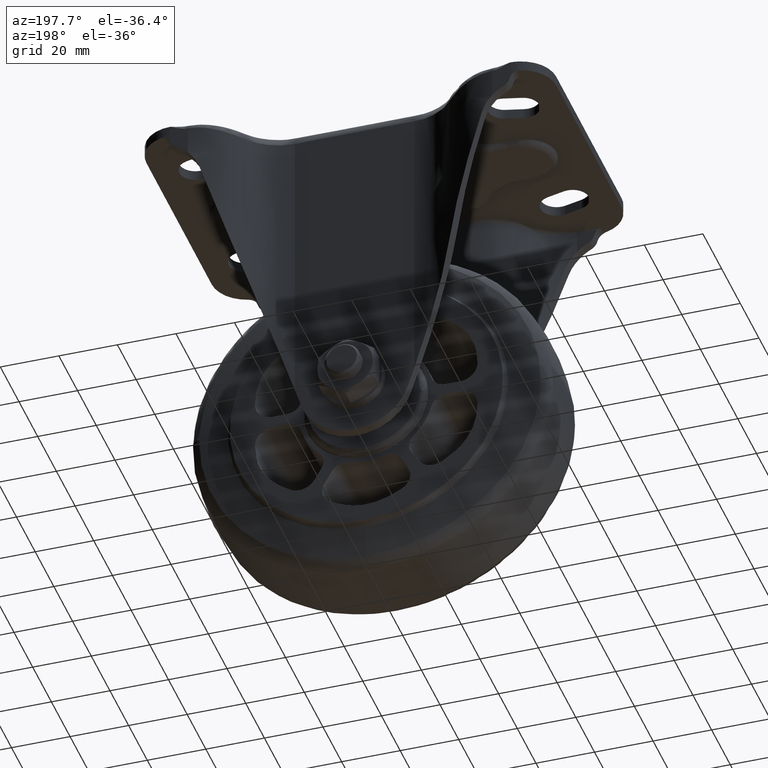
[diagram: clean part render]
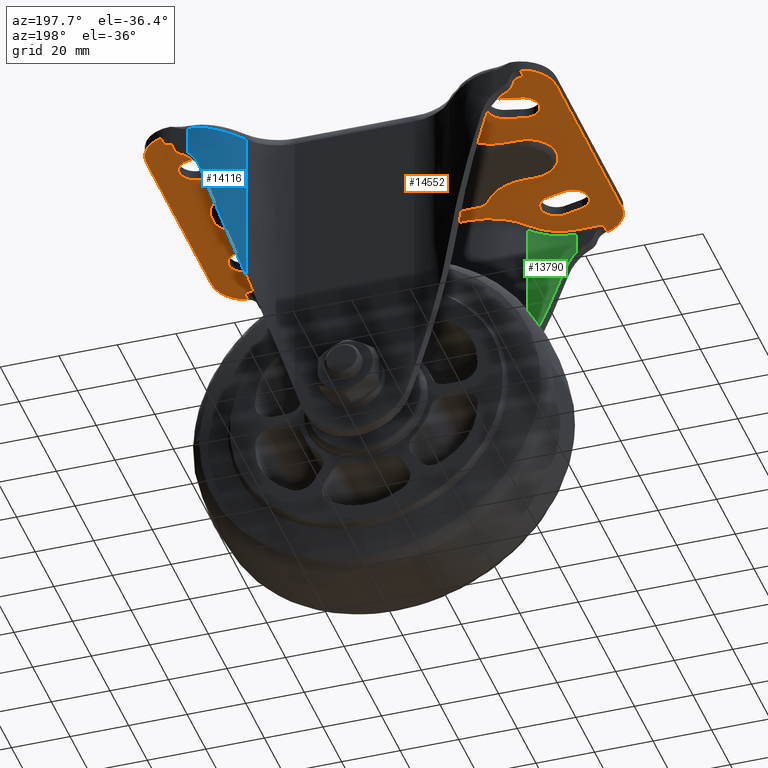
[diagram: same view with three faces highlighted in distinct colors, each labeled with its STEP entity id]
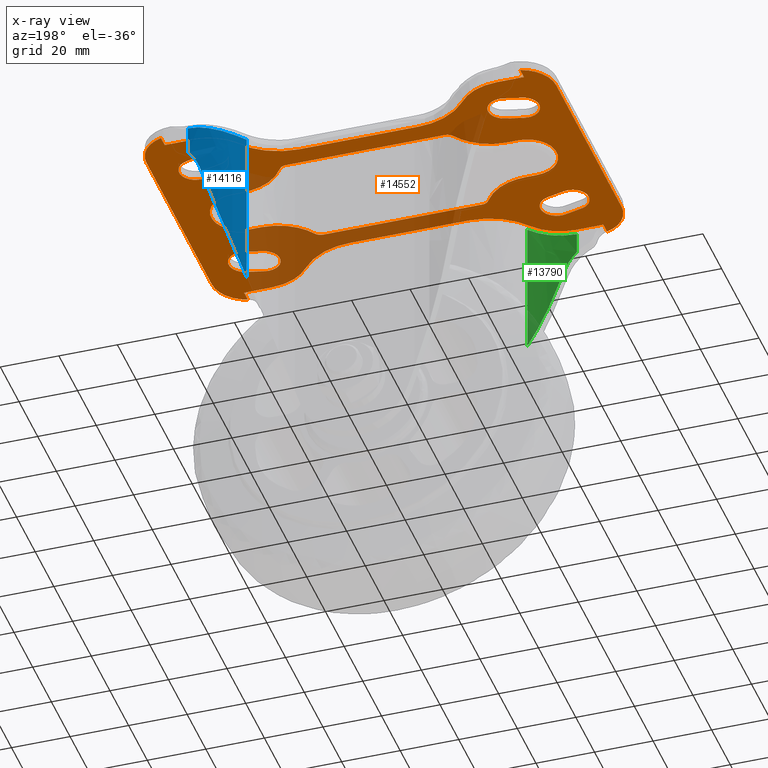
[diagram: x-ray of the same camera — body ghosted, the three highlighted faces saturated]
A machine part, auxiliary view with three faces highlighted in distinct colors.
The next image is the same camera in x-ray (body ghosted, the three faces saturated) — at least one of them is partly hidden behind the body in this view.
Their STEP definitions:

[orange] entity #14552 — the highlighted face is a freeform B-spline surface patch.
#7588=CARTESIAN_POINT('',(-27.111453057522201,20.0,102.0));
#7589=VERTEX_POINT('',#7588);
#7620=CARTESIAN_POINT('',(-29.666963243393049,18.571423719730848,102.0));
#7621=VERTEX_POINT('',#7620);
#7635=CARTESIAN_POINT('',(-27.111453057522201,19.999999999999851,102.0));
#7636=CARTESIAN_POINT('',(-28.788508396873635,20.000000526862330,102.0));
#7637=CARTESIAN_POINT('',(-29.666963243393042,18.571423719730848,102.0));
#7645=(BOUNDED_CURVE()B_SPLINE_CURVE(2,(#7635,#7636,#7637),.UNSPECIFIED.,.F.,.U.)CURVE()GEOMETRIC_REPRESENTATION_ITEM()QUASI_UNIFORM_CURVE()RATIONAL_B_SPLINE_CURVE((1.0,0.872871021103525,1.0))REPRESENTATION_ITEM(''));
#7646=EDGE_CURVE('',#7589,#7621,#7645,.T.);
#7670=CARTESIAN_POINT('',(-45.0,9.999999999999890,102.0));
#7671=VERTEX_POINT('',#7670);
#7685=CARTESIAN_POINT('',(-45.0,9.999999999999890,102.0));
#7686=CARTESIAN_POINT('',(-34.937696298665038,9.999999513640345,102.0));
#7687=CARTESIAN_POINT('',(-29.666963243393049,18.571423719730848,102.0));
#7695=(BOUNDED_CURVE()B_SPLINE_CURVE(2,(#7685,#7686,#7687),.UNSPECIFIED.,.F.,.U.)CURVE()GEOMETRIC_REPRESENTATION_ITEM()QUASI_UNIFORM_CURVE()RATIONAL_B_SPLINE_CURVE((1.0,0.872871622665192,1.0))REPRESENTATION_ITEM(''));
#7696=EDGE_CURVE('',#7671,#7621,#7695,.T.);
#7729=CARTESIAN_POINT('',(27.111454942477849,20.0,102.0));
#7730=VERTEX_POINT('',#7729);
#7752=CARTESIAN_POINT('',(-27.111453057522201,20.0,102.0));
#7753=CARTESIAN_POINT('',(27.111454942477849,20.0,102.0));
#7754=QUASI_UNIFORM_CURVE('',1,(#7752,#7753),.UNSPECIFIED.,.F.,.U.);
#7755=EDGE_CURVE('',#7589,#7730,#7754,.T.);
#7776=CARTESIAN_POINT('',(-48.999996858407300,9.999999999999890,102.0));
#7777=VERTEX_POINT('',#7776);
#7791=CARTESIAN_POINT('',(-48.999996858407300,9.999999999999890,102.0));
#7792=CARTESIAN_POINT('',(-45.0,9.999999999999890,102.0));
#7793=QUASI_UNIFORM_CURVE('',1,(#7791,#7792),.UNSPECIFIED.,.F.,.U.);
#7794=EDGE_CURVE('',#7777,#7671,#7793,.T.);
#7838=CARTESIAN_POINT('',(29.666961915296451,18.571422919797602,102.0));
#7839=VERTEX_POINT('',#7838);
#7869=CARTESIAN_POINT('',(29.666961915296451,18.571422919797602,102.0));
#7870=CARTESIAN_POINT('',(28.788508375156017,19.999999067099644,102.0));
#7871=CARTESIAN_POINT('',(27.111454942477849,20.0,102.0));
#7879=(BOUNDED_CURVE()B_SPLINE_CURVE(2,(#7869,#7870,#7871),.UNSPECIFIED.,.F.,.U.)CURVE()GEOMETRIC_REPRESENTATION_ITEM()QUASI_UNIFORM_CURVE()RATIONAL_B_SPLINE_CURVE((1.0,0.872871175557121,1.0))REPRESENTATION_ITEM(''));
#7880=EDGE_CURVE('',#7839,#7730,#7879,.T.);
#7910=CARTESIAN_POINT('',(-49.0,-10.0,102.0));
#7911=VERTEX_POINT('',#7910);
#7925=CARTESIAN_POINT('',(-48.999996858407300,9.999999999999890,102.0));
#7926=CARTESIAN_POINT('',(-54.773500248435006,10.000001813799120,102.000000000000010));
#7927=CARTESIAN_POINT('',(-57.660252990646633,5.000001813799281,102.0));
#7928=CARTESIAN_POINT('',(-60.547005732858260,0.000001813799445,102.000000000000010));
#7929=CARTESIAN_POINT('',(-57.660254561443132,-4.999999093100278,102.0));
#7930=CARTESIAN_POINT('',(-54.773503390027990,-10.0,102.000000000000010));
#7931=CARTESIAN_POINT('',(-49.0,-10.0,102.0));
#7939=(BOUNDED_CURVE()B_SPLINE_CURVE(2,(#7925,#7926,#7927,#7928,#7929,#7930,#7931),.UNSPECIFIED.,.F.,.U.)B_SPLINE_CURVE_WITH_KNOTS((3,2,2,3),(0.0,0.333333333333333,0.666666666666667,1.0),.UNSPECIFIED.)CURVE()GEOMETRIC_REPRESENTATION_ITEM()RATIONAL_B_SPLINE_CURVE((1.0,0.866025377604498,1.0,0.866025377604498,1.0,0.866025377604498,1.0))REPRESENTATION_ITEM(''));
#7940=EDGE_CURVE('',#7777,#7911,#7939,.T.);
#7980=CARTESIAN_POINT('',(44.999996000000053,9.999999999999890,102.0));
#7981=VERTEX_POINT('',#7980);
#8011=CARTESIAN_POINT('',(29.666961915296461,18.571422919797609,102.0));
#8012=CARTESIAN_POINT('',(34.937694455240944,10.0,102.000000000000010));
#8013=CARTESIAN_POINT('',(44.999996000000053,10.0,102.0));
#8021=(BOUNDED_CURVE()B_SPLINE_CURVE(2,(#8011,#8012,#8013),.UNSPECIFIED.,.F.,.U.)CURVE()GEOMETRIC_REPRESENTATION_ITEM()QUASI_UNIFORM_CURVE()RATIONAL_B_SPLINE_CURVE((1.0,0.872871650871141,1.0))REPRESENTATION_ITEM(''));
#8022=EDGE_CURVE('',#7839,#7981,#8021,.T.);
#8043=CARTESIAN_POINT('',(-45.0,-10.0,102.0));
#8044=VERTEX_POINT('',#8043);
#8058=CARTESIAN_POINT('',(-45.0,-10.0,102.0));
#8059=CARTESIAN_POINT('',(-49.0,-10.0,102.0));
#8060=QUASI_UNIFORM_CURVE('',1,(#8058,#8059),.UNSPECIFIED.,.F.,.U.);
#8061=EDGE_CURVE('',#8044,#7911,#8060,.T.);
#8086=CARTESIAN_POINT('',(48.999996000000102,10.0,102.0));
#8087=VERTEX_POINT('',#8086);
#8111=CARTESIAN_POINT('',(44.999996000000053,9.999999999999890,102.0));
#8112=CARTESIAN_POINT('',(48.999996000000102,10.0,102.0));
#8113=QUASI_UNIFORM_CURVE('',1,(#8111,#8112),.UNSPECIFIED.,.F.,.U.);
#8114=EDGE_CURVE('',#7981,#8087,#8113,.T.);
#8138=CARTESIAN_POINT('',(-29.666961927309199,-18.571429405184752,102.0));
#8139=VERTEX_POINT('',#8138);
#8153=CARTESIAN_POINT('',(-29.666961927309210,-18.571429405184759,102.0));
#8154=CARTESIAN_POINT('',(-34.937693458929111,-10.0,101.999999999999990));
#8155=CARTESIAN_POINT('',(-45.0,-10.0,102.0));
#8163=(BOUNDED_CURVE()B_SPLINE_CURVE(2,(#8153,#8154,#8155),.UNSPECIFIED.,.F.,.U.)CURVE()GEOMETRIC_REPRESENTATION_ITEM()QUASI_UNIFORM_CURVE()RATIONAL_B_SPLINE_CURVE((1.0,0.872871547677474,1.0))REPRESENTATION_ITEM(''));
#8164=EDGE_CURVE('',#8139,#8044,#8163,.T.);
#8206=CARTESIAN_POINT('',(48.999989542281803,-10.0,102.0));
#8207=VERTEX_POINT('',#8206);
#8241=CARTESIAN_POINT('',(48.999989542281803,-10.0,102.0));
#8242=CARTESIAN_POINT('',(54.773493669225459,-10.000003728364234,102.0));
#8243=CARTESIAN_POINT('',(57.660247885270920,-5.000003728364930,102.0));
#8244=CARTESIAN_POINT('',(60.547002101316373,-0.000003728365621,102.0));
#8245=CARTESIAN_POINT('',(57.660251114130659,4.999998135817191,102.0));
#8246=CARTESIAN_POINT('',(54.773500126944938,10.0,102.0));
#8247=CARTESIAN_POINT('',(48.999996000000102,10.0,102.0));
#8255=(BOUNDED_CURVE()B_SPLINE_CURVE(2,(#8241,#8242,#8243,#8244,#8245,#8246,#8247),.UNSPECIFIED.,.F.,.U.)B_SPLINE_CURVE_WITH_KNOTS((3,2,2,3),(0.0,0.333333333333333,0.666666666666667,1.0),.UNSPECIFIED.)CURVE()GEOMETRIC_REPRESENTATION_ITEM()RATIONAL_B_SPLINE_CURVE((1.0,0.866025349970115,1.0,0.866025349970115,1.0,0.866025349970115,1.0))REPRESENTATION_ITEM(''));
#8256=EDGE_CURVE('',#8207,#8087,#8255,.T.);
#8296=CARTESIAN_POINT('',(-27.111454000000052,-20.0,102.0));
#8297=VERTEX_POINT('',#8296);
#8311=CARTESIAN_POINT('',(-29.666961927309199,-18.571429405184752,102.0));
#8312=CARTESIAN_POINT('',(-28.788505881108907,-20.000000486357791,102.0));
#8313=CARTESIAN_POINT('',(-27.111454000000052,-20.0,102.0));
#8321=(BOUNDED_CURVE()B_SPLINE_CURVE(2,(#8311,#8312,#8313),.UNSPECIFIED.,.F.,.U.)CURVE()GEOMETRIC_REPRESENTATION_ITEM()QUASI_UNIFORM_CURVE()RATIONAL_B_SPLINE_CURVE((1.0,0.872871547677468,1.0))REPRESENTATION_ITEM(''));
#8322=EDGE_CURVE('',#8139,#8297,#8321,.T.);
#8355=CARTESIAN_POINT('',(44.999996000000053,-10.0,102.0));
#8356=VERTEX_POINT('',#8355);
#8378=CARTESIAN_POINT('',(48.999989542281803,-10.0,102.0));
#8379=CARTESIAN_POINT('',(44.999996000000053,-10.0,102.0));
#8380=QUASI_UNIFORM_CURVE('',1,(#8378,#8379),.UNSPECIFIED.,.F.,.U.);
#8381=EDGE_CURVE('',#8207,#8356,#8380,.T.);
#8402=CARTESIAN_POINT('',(27.111454942477849,-20.0,102.0));
#8403=VERTEX_POINT('',#8402);
#8417=CARTESIAN_POINT('',(27.111454942477849,-20.0,102.0));
#8418=CARTESIAN_POINT('',(-27.111454000000052,-20.0,102.0));
#8419=QUASI_UNIFORM_CURVE('',1,(#8417,#8418),.UNSPECIFIED.,.F.,.U.);
#8420=EDGE_CURVE('',#8403,#8297,#8419,.T.);
#8448=CARTESIAN_POINT('',(29.666959019259451,-18.571430589157501,102.0));
#8449=VERTEX_POINT('',#8448);
#8481=CARTESIAN_POINT('',(44.999996000000053,-10.0,102.0));
#8482=CARTESIAN_POINT('',(34.937689832742514,-10.000000406040860,101.999999999999990));
#8483=CARTESIAN_POINT('',(29.666959019259451,-18.571430589157501,102.0));
#8491=(BOUNDED_CURVE()B_SPLINE_CURVE(2,(#8481,#8482,#8483),.UNSPECIFIED.,.F.,.U.)CURVE()GEOMETRIC_REPRESENTATION_ITEM()QUASI_UNIFORM_CURVE()RATIONAL_B_SPLINE_CURVE((1.0,0.872871541760047,1.0))REPRESENTATION_ITEM(''));
#8492=EDGE_CURVE('',#8356,#8449,#8491,.T.);
#8545=CARTESIAN_POINT('',(27.111454942477849,-19.999999999999851,102.0));
#8546=CARTESIAN_POINT('',(28.788503752652961,-19.999999473139422,102.0));
#8547=CARTESIAN_POINT('',(29.666959019259469,-18.571430589157512,102.0));
#8555=(BOUNDED_CURVE()B_SPLINE_CURVE(2,(#8545,#8546,#8547),.UNSPECIFIED.,.F.,.U.)CURVE()GEOMETRIC_REPRESENTATION_ITEM()QUASI_UNIFORM_CURVE()RATIONAL_B_SPLINE_CURVE((1.0,0.872871830224138,1.0))REPRESENTATION_ITEM(''));
#8556=EDGE_CURVE('',#8403,#8449,#8555,.T.);
#9588=CARTESIAN_POINT('',(-57.337090776347402,-31.834996556306798,102.0));
#9589=VERTEX_POINT('',#9588);
#9595=CARTESIAN_POINT('',(-54.666051000000003,-21.164215999999900,102.0));
#9596=VERTEX_POINT('',#9595);
#9597=CARTESIAN_POINT('',(-57.337090776347431,-31.834996556306919,102.0));
#9598=CARTESIAN_POINT('',(-62.670516672160673,-30.498299428884415,101.999999999999990));
#9599=CARTESIAN_POINT('',(-61.335390031903522,-25.164480173316552,102.0));
#9600=CARTESIAN_POINT('',(-60.000263391646371,-19.830660917748695,101.999999999999990));
#9601=CARTESIAN_POINT('',(-54.666051000000003,-21.164215999999900,102.0));
#9609=(BOUNDED_CURVE()B_SPLINE_CURVE(2,(#9597,#9598,#9599,#9600,#9601),.UNSPECIFIED.,.F.,.U.)B_SPLINE_CURVE_WITH_KNOTS((3,2,3),(0.0,0.500000000000000,1.0),.UNSPECIFIED.)CURVE()GEOMETRIC_REPRESENTATION_ITEM()RATIONAL_B_SPLINE_CURVE((1.0,0.707210877450359,1.0,0.707210877450359,1.0))REPRESENTATION_ITEM(''));
#9610=EDGE_CURVE('',#9589,#9596,#9609,.T.);
#9633=CARTESIAN_POINT('',(-48.666046003829699,-22.664218263824651,102.0));
#9634=VERTEX_POINT('',#9633);
#9635=CARTESIAN_POINT('',(-48.666046003829699,-22.664218263824651,102.0));
#9636=CARTESIAN_POINT('',(-54.666051000000003,-21.164215999999900,102.0));
#9637=QUASI_UNIFORM_CURVE('',1,(#9635,#9636),.UNSPECIFIED.,.F.,.U.);
#9638=EDGE_CURVE('',#9634,#9596,#9637,.T.);
#9684=CARTESIAN_POINT('',(-51.329770181438903,-33.336825954118702,102.0));
#9685=VERTEX_POINT('',#9684);
#9686=CARTESIAN_POINT('',(-48.666046003829727,-22.664218263824750,102.0));
#9687=CARTESIAN_POINT('',(-43.332355560357335,-23.997649433463494,101.999999999999990));
#9688=CARTESIAN_POINT('',(-44.663695744824203,-29.331862191141681,102.0));
#9689=CARTESIAN_POINT('',(-45.995035929291092,-34.666074948819862,101.999999999999990));
#9690=CARTESIAN_POINT('',(-51.329770181438917,-33.336825954118787,102.0));
#9698=(BOUNDED_CURVE()B_SPLINE_CURVE(2,(#9686,#9687,#9688,#9689,#9690),.UNSPECIFIED.,.F.,.U.)B_SPLINE_CURVE_WITH_KNOTS((3,2,3),(0.0,0.500000000000000,1.0),.UNSPECIFIED.)CURVE()GEOMETRIC_REPRESENTATION_ITEM()RATIONAL_B_SPLINE_CURVE((1.0,0.707245365577027,1.0,0.707245365577027,1.0))REPRESENTATION_ITEM(''));
#9699=EDGE_CURVE('',#9634,#9685,#9698,.T.);
#9720=CARTESIAN_POINT('',(-57.337090776347402,-31.834996556306798,102.0));
#9721=CARTESIAN_POINT('',(-51.329770181438903,-33.336825954118702,102.0));
#9722=QUASI_UNIFORM_CURVE('',1,(#9720,#9721),.UNSPECIFIED.,.F.,.U.);
#9723=EDGE_CURVE('',#9589,#9685,#9722,.T.);
#9743=CARTESIAN_POINT('',(-57.333949339821700,31.835780415045601,102.0));
#9744=VERTEX_POINT('',#9743);
#9750=CARTESIAN_POINT('',(-51.328027779716301,33.337259804085001,102.0));
#9751=VERTEX_POINT('',#9750);
#9752=CARTESIAN_POINT('',(-57.333949339821700,31.835780415045601,102.0));
#9753=CARTESIAN_POINT('',(-51.328027779716301,33.337259804085001,102.0));
#9754=QUASI_UNIFORM_CURVE('',1,(#9752,#9753),.UNSPECIFIED.,.F.,.U.);
#9755=EDGE_CURVE('',#9744,#9751,#9754,.T.);
#9800=CARTESIAN_POINT('',(-54.666051000000003,21.164214000000001,102.0));
#9801=VERTEX_POINT('',#9800);
#9807=CARTESIAN_POINT('',(-54.666051000000003,21.164214000000001,102.0));
#9808=CARTESIAN_POINT('',(-60.001833345592935,19.830265913603526,101.999999999999990));
#9809=CARTESIAN_POINT('',(-61.335782311260559,25.166048304155471,102.0));
#9810=CARTESIAN_POINT('',(-62.669731276928189,30.501830694707433,101.999999999999990));
#9811=CARTESIAN_POINT('',(-57.333949339821700,31.835780415045601,102.0));
#9819=(BOUNDED_CURVE()B_SPLINE_CURVE(2,(#9807,#9808,#9809,#9810,#9811),.UNSPECIFIED.,.F.,.U.)B_SPLINE_CURVE_WITH_KNOTS((3,2,3),(0.0,0.500000000000000,1.0),.UNSPECIFIED.)CURVE()GEOMETRIC_REPRESENTATION_ITEM()RATIONAL_B_SPLINE_CURVE((1.0,0.707106835319715,1.0,0.707106835319715,1.0))REPRESENTATION_ITEM(''));
#9820=EDGE_CURVE('',#9801,#9744,#9819,.T.);
#9838=CARTESIAN_POINT('',(-48.666051000000003,22.664214000000001,102.0));
#9839=VERTEX_POINT('',#9838);
#9845=CARTESIAN_POINT('',(-48.666051000000003,22.664214000000001,102.0));
#9846=CARTESIAN_POINT('',(-54.666051000000003,21.164214000000001,102.0));
#9847=QUASI_UNIFORM_CURVE('',1,(#9845,#9846),.UNSPECIFIED.,.F.,.U.);
#9848=EDGE_CURVE('',#9839,#9801,#9847,.T.);
#9888=CARTESIAN_POINT('',(-51.328027779716301,33.337259804085001,102.0));
#9889=CARTESIAN_POINT('',(-45.993727819290321,34.664551108679944,101.999999999999990));
#9890=CARTESIAN_POINT('',(-44.663477340944468,29.330986821239129,102.0));
#9891=CARTESIAN_POINT('',(-43.333226862598593,23.997422533798328,101.999999999999990));
#9892=CARTESIAN_POINT('',(-48.666051000000003,22.664214000000001,102.0));
#9900=(BOUNDED_CURVE()B_SPLINE_CURVE(2,(#9888,#9889,#9890,#9891,#9892),.UNSPECIFIED.,.F.,.U.)B_SPLINE_CURVE_WITH_KNOTS((3,2,3),(0.0,0.500000000000000,1.0),.UNSPECIFIED.)CURVE()GEOMETRIC_REPRESENTATION_ITEM()RATIONAL_B_SPLINE_CURVE((1.0,0.707302875795244,1.0,0.707302875795244,1.0))REPRESENTATION_ITEM(''));
#9901=EDGE_CURVE('',#9751,#9839,#9900,.T.);
#9921=CARTESIAN_POINT('',(51.333947081776898,33.335791979555751,102.0));
#9922=VERTEX_POINT('',#9921);
#9928=CARTESIAN_POINT('',(57.333943000000303,31.835792999999949,102.0));
#9929=VERTEX_POINT('',#9928);
#9930=CARTESIAN_POINT('',(51.333947081776898,33.335791979555751,102.0));
#9931=CARTESIAN_POINT('',(57.333943000000303,31.835792999999949,102.0));
#9932=QUASI_UNIFORM_CURVE('',1,(#9930,#9931),.UNSPECIFIED.,.F.,.U.);
#9933=EDGE_CURVE('',#9922,#9929,#9932,.T.);
#9978=CARTESIAN_POINT('',(48.656552388160300,22.666599652959949,102.0));
#9979=VERTEX_POINT('',#9978);
#9985=CARTESIAN_POINT('',(48.656552388160293,22.666599652959921,102.0));
#9986=CARTESIAN_POINT('',(43.327895303382924,24.008851462755505,102.0));
#9987=CARTESIAN_POINT('',(44.665401664071553,29.338701646687980,102.0));
#9988=CARTESIAN_POINT('',(46.002908024760188,34.668551830620459,102.0));
#9989=CARTESIAN_POINT('',(51.333947081776898,33.335791979555758,102.0));
#9997=(BOUNDED_CURVE()B_SPLINE_CURVE(2,(#9985,#9986,#9987,#9988,#9989),.UNSPECIFIED.,.F.,.U.)B_SPLINE_CURVE_WITH_KNOTS((3,2,3),(0.0,0.500000000000000,1.0),.UNSPECIFIED.)CURVE()GEOMETRIC_REPRESENTATION_ITEM()RATIONAL_B_SPLINE_CURVE((1.0,0.707421533697277,1.0,0.707421533697277,1.0))REPRESENTATION_ITEM(''));
#9998=EDGE_CURVE('',#9979,#9922,#9997,.T.);
#10016=CARTESIAN_POINT('',(54.656551208238497,21.166599947940401,102.0));
#10017=VERTEX_POINT('',#10016);
#10023=CARTESIAN_POINT('',(54.656551208238497,21.166599947940401,102.0));
#10024=CARTESIAN_POINT('',(48.656552388160300,22.666599652959949,102.0));
#10025=QUASI_UNIFORM_CURVE('',1,(#10023,#10024),.UNSPECIFIED.,.F.,.U.);
#10026=EDGE_CURVE('',#10017,#9979,#10025,.T.);
#10068=CARTESIAN_POINT('',(57.333943000000303,31.835792999999970,102.0));
#10069=CARTESIAN_POINT('',(60.416673197710928,31.065110450572302,102.0));
#10070=CARTESIAN_POINT('',(61.288794405848037,28.009528400915180,102.0));
#10071=CARTESIAN_POINT('',(62.160915613985139,24.953946351258040,102.0));
#10072=CARTESIAN_POINT('',(59.949410008748153,22.672188252362648,102.0));
#10073=CARTESIAN_POINT('',(57.737904403511131,20.390430153467253,102.0));
#10074=CARTESIAN_POINT('',(54.656551208238497,21.166599947940409,102.0));
#10082=(BOUNDED_CURVE()B_SPLINE_CURVE(2,(#10068,#10069,#10070,#10071,#10072,#10073,#10074),.UNSPECIFIED.,.F.,.U.)B_SPLINE_CURVE_WITH_KNOTS((3,2,2,3),(0.0,0.333333333333333,0.666666666666667,1.0),.UNSPECIFIED.)CURVE()GEOMETRIC_REPRESENTATION_ITEM()RATIONAL_B_SPLINE_CURVE((1.0,0.865876999627006,1.0,0.865876999627006,1.0,0.865876999627006,1.0))REPRESENTATION_ITEM(''));
#10083=EDGE_CURVE('',#9929,#10017,#10082,.T.);
#10126=CARTESIAN_POINT('',(54.679772089322597,-21.160804477669299,102.0));
#10127=VERTEX_POINT('',#10126);
#10133=CARTESIAN_POINT('',(57.333954000000098,-31.835798999999898,102.0));
#10134=VERTEX_POINT('',#10133);
#10135=CARTESIAN_POINT('',(54.679772089322597,-21.160804477669341,102.0));
#10136=CARTESIAN_POINT('',(60.012118891368637,-19.842266459500909,102.0));
#10137=CARTESIAN_POINT('',(61.337506954734543,-25.172914769428441,102.0));
#10138=CARTESIAN_POINT('',(62.662895018100436,-30.503563079355988,102.0));
#10139=CARTESIAN_POINT('',(57.333954000000112,-31.835798999999930,102.0));
#10147=(BOUNDED_CURVE()B_SPLINE_CURVE(2,(#10135,#10136,#10137,#10138,#10139),.UNSPECIFIED.,.F.,.U.)B_SPLINE_CURVE_WITH_KNOTS((3,2,3),(0.0,0.500000000000000,1.0),.UNSPECIFIED.)CURVE()GEOMETRIC_REPRESENTATION_ITEM()RATIONAL_B_SPLINE_CURVE((1.0,0.707560889673780,1.0,0.707560889673780,1.0))REPRESENTATION_ITEM(''));
#10148=EDGE_CURVE('',#10127,#10134,#10147,.T.);
#10170=CARTESIAN_POINT('',(48.679772089332999,-22.660804477666758,102.0));
#10171=VERTEX_POINT('',#10170);
#10177=CARTESIAN_POINT('',(48.679772089332999,-22.660804477666758,102.0));
#10178=CARTESIAN_POINT('',(54.679772089322597,-21.160804477669299,102.0));
#10179=QUASI_UNIFORM_CURVE('',1,(#10177,#10178),.UNSPECIFIED.,.F.,.U.);
#10180=EDGE_CURVE('',#10171,#10127,#10179,.T.);
#10223=CARTESIAN_POINT('',(51.333965000000099,-33.335796999999893,102.0));
#10224=VERTEX_POINT('',#10223);
#10230=CARTESIAN_POINT('',(51.333965000000099,-33.335796999999900,102.0));
#10231=CARTESIAN_POINT('',(48.250298489037696,-34.106714013199500,102.0));
#10232=CARTESIAN_POINT('',(46.042788061562312,-31.819748796004671,102.0));
#10233=CARTESIAN_POINT('',(43.835277634086921,-29.532783578809834,102.0));
#10234=CARTESIAN_POINT('',(44.714706977810252,-26.478292422910059,102.0));
#10235=CARTESIAN_POINT('',(45.594136321533590,-23.423801267010283,102.0));
#10236=CARTESIAN_POINT('',(48.679772089332992,-22.660804477666719,102.0));
#10244=(BOUNDED_CURVE()B_SPLINE_CURVE(2,(#10230,#10231,#10232,#10233,#10234,#10235,#10236),.UNSPECIFIED.,.F.,.U.)B_SPLINE_CURVE_WITH_KNOTS((3,2,2,3),(0.0,0.333333333333333,0.666666666666667,1.0),.UNSPECIFIED.)CURVE()GEOMETRIC_REPRESENTATION_ITEM()RATIONAL_B_SPLINE_CURVE((1.0,0.865811355956095,1.0,0.865811355956095,1.0,0.865811355956095,1.0))REPRESENTATION_ITEM(''));
#10245=EDGE_CURVE('',#10224,#10171,#10244,.T.);
#10262=CARTESIAN_POINT('',(57.333954000000098,-31.835798999999898,102.0));
#10263=CARTESIAN_POINT('',(51.333965000000099,-33.335796999999893,102.0));
#10264=QUASI_UNIFORM_CURVE('',1,(#10262,#10263),.UNSPECIFIED.,.F.,.U.);
#10265=EDGE_CURVE('',#10134,#10224,#10264,.T.);
#11255=CARTESIAN_POINT('',(52.000001811946497,42.499999999998948,102.0));
#11256=VERTEX_POINT('',#11255);
#11279=CARTESIAN_POINT('',(61.348450228349598,42.500000000000000,102.0));
#11280=VERTEX_POINT('',#11279);
#11309=CARTESIAN_POINT('',(52.000001811946497,42.499999999998948,102.0));
#11310=CARTESIAN_POINT('',(61.348450228349598,42.500000000000000,102.0));
#11311=QUASI_UNIFORM_CURVE('',1,(#11309,#11310),.UNSPECIFIED.,.F.,.U.);
#11312=EDGE_CURVE('',#11256,#11280,#11311,.T.);
#11334=CARTESIAN_POINT('',(38.166760715457997,35.718750000000000,102.0));
#11335=VERTEX_POINT('',#11334);
#11365=CARTESIAN_POINT('',(38.166760715457997,35.718749999999993,102.0));
#11366=CARTESIAN_POINT('',(43.421247643581729,42.500002849099580,102.0));
#11367=CARTESIAN_POINT('',(52.000001811946490,42.499999999999041,102.0));
#11375=(BOUNDED_CURVE()B_SPLINE_CURVE(2,(#11365,#11366,#11367),.UNSPECIFIED.,.F.,.U.)CURVE()GEOMETRIC_REPRESENTATION_ITEM()QUASI_UNIFORM_CURVE()RATIONAL_B_SPLINE_CURVE((1.0,0.897914176710618,1.0))REPRESENTATION_ITEM(''));
#11376=EDGE_CURVE('',#11335,#11256,#11375,.T.);
#11398=CARTESIAN_POINT('',(20.381172492475351,27.0,102.0));
#11399=VERTEX_POINT('',#11398);
#11429=CARTESIAN_POINT('',(20.381172492475351,27.0,102.0));
#11430=CARTESIAN_POINT('',(31.410994646263042,27.000000000000007,102.0));
#11431=CARTESIAN_POINT('',(38.166760715457997,35.718749999999993,102.0));
#11439=(BOUNDED_CURVE()B_SPLINE_CURVE(2,(#11429,#11430,#11431),.UNSPECIFIED.,.F.,.U.)CURVE()GEOMETRIC_REPRESENTATION_ITEM()QUASI_UNIFORM_CURVE()RATIONAL_B_SPLINE_CURVE((1.0,0.897914249803399,1.0))REPRESENTATION_ITEM(''));
#11440=EDGE_CURVE('',#11399,#11335,#11439,.T.);
#11459=CARTESIAN_POINT('',(-20.381172492475201,27.0,102.0));
#11460=VERTEX_POINT('',#11459);
#11482=CARTESIAN_POINT('',(-20.381172492475201,27.0,102.0));
#11483=CARTESIAN_POINT('',(20.381172492475351,27.0,102.0));
#11484=QUASI_UNIFORM_CURVE('',1,(#11482,#11483),.UNSPECIFIED.,.F.,.U.);
#11485=EDGE_CURVE('',#11460,#11399,#11484,.T.);
#11507=CARTESIAN_POINT('',(-38.166760715457862,35.718750000000000,102.0));
#11508=VERTEX_POINT('',#11507);
#11538=CARTESIAN_POINT('',(-38.166760715457833,35.718750000000021,102.0));
#11539=CARTESIAN_POINT('',(-31.410994646262864,27.000000000000007,102.0));
#11540=CARTESIAN_POINT('',(-20.381172492475152,27.0,102.0));
#11548=(BOUNDED_CURVE()B_SPLINE_CURVE(2,(#11538,#11539,#11540),.UNSPECIFIED.,.F.,.U.)CURVE()GEOMETRIC_REPRESENTATION_ITEM()QUASI_UNIFORM_CURVE()RATIONAL_B_SPLINE_CURVE((1.0,0.897914249803399,1.0))REPRESENTATION_ITEM(''));
#11549=EDGE_CURVE('',#11508,#11460,#11548,.T.);
#11571=CARTESIAN_POINT('',(-51.999996000000003,42.500000000000000,102.0));
#11572=VERTEX_POINT('',#11571);
#11602=CARTESIAN_POINT('',(-51.999996000000003,42.500000000000000,102.0));
#11603=CARTESIAN_POINT('',(-43.421245435942872,42.499999999999986,102.000000000000010));
#11604=CARTESIAN_POINT('',(-38.166760715457897,35.718749999999979,102.0));
#11612=(BOUNDED_CURVE()B_SPLINE_CURVE(2,(#11602,#11603,#11604),.UNSPECIFIED.,.F.,.U.)CURVE()GEOMETRIC_REPRESENTATION_ITEM()QUASI_UNIFORM_CURVE()RATIONAL_B_SPLINE_CURVE((1.0,0.897914249803398,1.0))REPRESENTATION_ITEM(''));
#11613=EDGE_CURVE('',#11572,#11508,#11612,.T.);
#11634=CARTESIAN_POINT('',(-61.348446228349403,42.500000000000000,102.0));
#11635=VERTEX_POINT('',#11634);
#11670=CARTESIAN_POINT('',(-61.348446228349403,42.500000000000000,102.0));
#11671=CARTESIAN_POINT('',(-51.999996000000003,42.500000000000000,102.0));
#11672=QUASI_UNIFORM_CURVE('',1,(#11670,#11671),.UNSPECIFIED.,.F.,.U.);
#11673=EDGE_CURVE('',#11635,#11572,#11672,.T.);
#11692=CARTESIAN_POINT('',(-51.999996000000003,-42.500000000000000,102.0));
#11693=VERTEX_POINT('',#11692);
#11716=CARTESIAN_POINT('',(-61.348446228349403,-42.500000000000000,102.0));
#11717=VERTEX_POINT('',#11716);
#11746=CARTESIAN_POINT('',(-51.999996000000003,-42.500000000000000,102.0));
#11747=CARTESIAN_POINT('',(-61.348446228349403,-42.500000000000000,102.0));
#11748=QUASI_UNIFORM_CURVE('',1,(#11746,#11747),.UNSPECIFIED.,.F.,.U.);
#11749=EDGE_CURVE('',#11693,#11717,#11748,.T.);
#11771=CARTESIAN_POINT('',(-38.166760715457862,-35.718750000000000,102.0));
#11772=VERTEX_POINT('',#11771);
#11802=CARTESIAN_POINT('',(-38.166760715457897,-35.718749999999972,102.0));
#11803=CARTESIAN_POINT('',(-43.421245435942872,-42.499999999999986,102.000000000000010));
#11804=CARTESIAN_POINT('',(-51.999996000000003,-42.500000000000000,102.0));
#11812=(BOUNDED_CURVE()B_SPLINE_CURVE(2,(#11802,#11803,#11804),.UNSPECIFIED.,.F.,.U.)CURVE()GEOMETRIC_REPRESENTATION_ITEM()QUASI_UNIFORM_CURVE()RATIONAL_B_SPLINE_CURVE((1.0,0.897914249803398,1.0))REPRESENTATION_ITEM(''));
#11813=EDGE_CURVE('',#11772,#11693,#11812,.T.);
#11835=CARTESIAN_POINT('',(-20.381172492475201,-27.0,102.0));
#11836=VERTEX_POINT('',#11835);
#11866=CARTESIAN_POINT('',(-20.381172492475152,-27.0,102.0));
#11867=CARTESIAN_POINT('',(-31.410994646262857,-27.000000000000004,102.0));
#11868=CARTESIAN_POINT('',(-38.166760715457833,-35.718750000000007,102.0));
#11876=(BOUNDED_CURVE()B_SPLINE_CURVE(2,(#11866,#11867,#11868),.UNSPECIFIED.,.F.,.U.)CURVE()GEOMETRIC_REPRESENTATION_ITEM()QUASI_UNIFORM_CURVE()RATIONAL_B_SPLINE_CURVE((1.0,0.897914249803398,1.0))REPRESENTATION_ITEM(''));
#11877=EDGE_CURVE('',#11836,#11772,#11876,.T.);
#11896=CARTESIAN_POINT('',(20.381172492475351,-27.0,102.0));
#11897=VERTEX_POINT('',#11896);
#11919=CARTESIAN_POINT('',(20.381172492475351,-27.0,102.0));
#11920=CARTESIAN_POINT('',(-20.381172492475201,-27.0,102.0));
#11921=QUASI_UNIFORM_CURVE('',1,(#11919,#11920),.UNSPECIFIED.,.F.,.U.);
#11922=EDGE_CURVE('',#11897,#11836,#11921,.T.);
#11944=CARTESIAN_POINT('',(38.166760715457997,-35.718750000000000,102.0));
#11945=VERTEX_POINT('',#11944);
#11975=CARTESIAN_POINT('',(38.166760715458011,-35.718749999999993,102.0));
#11976=CARTESIAN_POINT('',(31.410994646263038,-27.000000000000004,102.0));
#11977=CARTESIAN_POINT('',(20.381172492475351,-27.0,102.0));
#11985=(BOUNDED_CURVE()B_SPLINE_CURVE(2,(#11975,#11976,#11977),.UNSPECIFIED.,.F.,.U.)CURVE()GEOMETRIC_REPRESENTATION_ITEM()QUASI_UNIFORM_CURVE()RATIONAL_B_SPLINE_CURVE((1.0,0.897914249803399,1.0))REPRESENTATION_ITEM(''));
#11986=EDGE_CURVE('',#11945,#11897,#11985,.T.);
#12008=CARTESIAN_POINT('',(52.000001811946497,-42.499999999998948,102.0));
#12009=VERTEX_POINT('',#12008);
#12041=CARTESIAN_POINT('',(52.000001811946497,-42.499999999999041,102.0));
#12042=CARTESIAN_POINT('',(43.421247643581729,-42.500002849099580,102.0));
#12043=CARTESIAN_POINT('',(38.166760715458011,-35.718750000000000,102.0));
#12051=(BOUNDED_CURVE()B_SPLINE_CURVE(2,(#12041,#12042,#12043),.UNSPECIFIED.,.F.,.U.)CURVE()GEOMETRIC_REPRESENTATION_ITEM()QUASI_UNIFORM_CURVE()RATIONAL_B_SPLINE_CURVE((1.0,0.897914176710618,1.0))REPRESENTATION_ITEM(''));
#12052=EDGE_CURVE('',#12009,#11945,#12051,.T.);
#12073=CARTESIAN_POINT('',(61.348450228349598,-42.500000000000000,102.0));
#12074=VERTEX_POINT('',#12073);
#12109=CARTESIAN_POINT('',(61.348450228349598,-42.500000000000000,102.0));
#12110=CARTESIAN_POINT('',(52.000001811946497,-42.499999999998948,102.0));
#12111=QUASI_UNIFORM_CURVE('',1,(#12109,#12110),.UNSPECIFIED.,.F.,.U.);
#12112=EDGE_CURVE('',#12074,#12009,#12111,.T.);
#12169=CARTESIAN_POINT('',(61.348450228349598,-46.523361240568903,102.0));
#12170=VERTEX_POINT('',#12169);
#12171=CARTESIAN_POINT('',(61.348450228349598,-46.523361240568903,102.0));
#12172=CARTESIAN_POINT('',(61.348450228349598,-42.500000000000000,102.0));
#12173=QUASI_UNIFORM_CURVE('',1,(#12171,#12172),.UNSPECIFIED.,.F.,.U.);
#12174=EDGE_CURVE('',#12170,#12074,#12173,.T.);
#12260=CARTESIAN_POINT('',(61.348450228349598,46.523361240569002,102.0));
#12261=VERTEX_POINT('',#12260);
#12292=CARTESIAN_POINT('',(61.348450228349598,42.500000000000000,102.0));
#12293=CARTESIAN_POINT('',(61.348450228349598,46.523361240569002,102.0));
#12294=QUASI_UNIFORM_CURVE('',1,(#12292,#12293),.UNSPECIFIED.,.F.,.U.);
#12295=EDGE_CURVE('',#11280,#12261,#12294,.T.);
#12352=CARTESIAN_POINT('',(-61.348446228349403,-46.523363565203098,102.0));
#12353=VERTEX_POINT('',#12352);
#12384=CARTESIAN_POINT('',(-61.348446228349403,-42.500000000000000,102.0));
#12385=CARTESIAN_POINT('',(-61.348446228349403,-46.523363565203098,102.0));
#12386=QUASI_UNIFORM_CURVE('',1,(#12384,#12385),.UNSPECIFIED.,.F.,.U.);
#12387=EDGE_CURVE('',#11717,#12353,#12386,.T.);
#12445=CARTESIAN_POINT('',(-61.348446228349403,46.523363565203198,102.0));
#12446=VERTEX_POINT('',#12445);
#12447=CARTESIAN_POINT('',(-61.348446228349403,46.523363565203198,102.0));
#12448=CARTESIAN_POINT('',(-61.348446228349403,42.500000000000000,102.0));
#12449=QUASI_UNIFORM_CURVE('',1,(#12447,#12448),.UNSPECIFIED.,.F.,.U.);
#12450=EDGE_CURVE('',#12446,#11635,#12449,.T.);
#13972=CARTESIAN_POINT('',(69.999996000000095,-35.0,102.0));
#13973=VERTEX_POINT('',#13972);
#13974=CARTESIAN_POINT('',(69.999996000000095,-35.0,102.0));
#13975=CARTESIAN_POINT('',(69.999996000000095,-44.009398134140170,102.0));
#13976=CARTESIAN_POINT('',(61.348450228349627,-46.523361240569010,102.0));
#13984=(BOUNDED_CURVE()B_SPLINE_CURVE(2,(#13974,#13975,#13976),.UNSPECIFIED.,.F.,.U.)CURVE()GEOMETRIC_REPRESENTATION_ITEM()QUASI_UNIFORM_CURVE()RATIONAL_B_SPLINE_CURVE((1.0,0.799699272340066,1.0))REPRESENTATION_ITEM(''));
#13985=EDGE_CURVE('',#13973,#12170,#13984,.T.);
#14008=CARTESIAN_POINT('',(69.999996000000095,35.0,102.0));
#14009=VERTEX_POINT('',#14008);
#14010=CARTESIAN_POINT('',(69.999996000000095,35.0,102.0));
#14011=CARTESIAN_POINT('',(69.999996000000095,-35.0,102.0));
#14012=QUASI_UNIFORM_CURVE('',1,(#14010,#14011),.UNSPECIFIED.,.F.,.U.);
#14013=EDGE_CURVE('',#14009,#13973,#14012,.T.);
#14051=CARTESIAN_POINT('',(61.348450228349598,46.523361240569017,102.0));
#14052=CARTESIAN_POINT('',(69.999996000000110,44.009398134140191,102.000000000000010));
#14053=CARTESIAN_POINT('',(69.999996000000095,35.0,102.0));
#14061=(BOUNDED_CURVE()B_SPLINE_CURVE(2,(#14051,#14052,#14053),.UNSPECIFIED.,.F.,.U.)CURVE()GEOMETRIC_REPRESENTATION_ITEM()QUASI_UNIFORM_CURVE()RATIONAL_B_SPLINE_CURVE((1.0,0.799699272340065,1.0))REPRESENTATION_ITEM(''));
#14062=EDGE_CURVE('',#12261,#14009,#14061,.T.);
#14254=CARTESIAN_POINT('',(-70.0,35.0,102.0));
#14255=VERTEX_POINT('',#14254);
#14256=CARTESIAN_POINT('',(-70.0,35.0,102.0));
#14257=CARTESIAN_POINT('',(-70.000000000000014,44.009404647554959,102.0));
#14258=CARTESIAN_POINT('',(-61.348446228349403,46.523363565203212,102.0));
#14266=(BOUNDED_CURVE()B_SPLINE_CURVE(2,(#14256,#14257,#14258),.UNSPECIFIED.,.F.,.U.)CURVE()GEOMETRIC_REPRESENTATION_ITEM()QUASI_UNIFORM_CURVE()RATIONAL_B_SPLINE_CURVE((1.0,0.799699063928358,1.0))REPRESENTATION_ITEM(''));
#14267=EDGE_CURVE('',#14255,#12446,#14266,.T.);
#14290=CARTESIAN_POINT('',(-70.0,-35.0,102.0));
#14291=VERTEX_POINT('',#14290);
#14292=CARTESIAN_POINT('',(-70.0,-35.0,102.0));
#14293=CARTESIAN_POINT('',(-70.0,35.0,102.0));
#14294=QUASI_UNIFORM_CURVE('',1,(#14292,#14293),.UNSPECIFIED.,.F.,.U.);
#14295=EDGE_CURVE('',#14291,#14255,#14294,.T.);
#14333=CARTESIAN_POINT('',(-61.348446228349417,-46.523363565203212,102.0));
#14334=CARTESIAN_POINT('',(-70.0,-44.009404647554952,102.000000000000010));
#14335=CARTESIAN_POINT('',(-70.0,-35.0,102.0));
#14343=(BOUNDED_CURVE()B_SPLINE_CURVE(2,(#14333,#14334,#14335),.UNSPECIFIED.,.F.,.U.)CURVE()GEOMETRIC_REPRESENTATION_ITEM()QUASI_UNIFORM_CURVE()RATIONAL_B_SPLINE_CURVE((1.0,0.799699063928358,1.0))REPRESENTATION_ITEM(''));
#14344=EDGE_CURVE('',#12353,#14291,#14343,.T.);
#14479=CARTESIAN_POINT('',(-76.992999028674518,-51.171049151936472,102.0));
#14480=CARTESIAN_POINT('',(76.992988770187097,-51.171049151936472,102.0));
#14481=CARTESIAN_POINT('',(-76.992999028674518,51.171049983839140,102.0));
#14482=CARTESIAN_POINT('',(76.992988770187097,51.171049983839140,102.0));
#14483=B_SPLINE_SURFACE_WITH_KNOTS('',1,1,((#14479,#14481),(#14480,#14482)),.UNSPECIFIED.,.F.,.F.,.U.,(2,2),(2,2),(0.0,153.985987798861600),(0.0,102.342099135775600),.UNSPECIFIED.);
#14484=ORIENTED_EDGE('',*,*,#11749,.T.);
#14485=ORIENTED_EDGE('',*,*,#12387,.T.);
#14486=ORIENTED_EDGE('',*,*,#14344,.T.);
#14487=ORIENTED_EDGE('',*,*,#14295,.T.);
#14488=ORIENTED_EDGE('',*,*,#14267,.T.);
#14489=ORIENTED_EDGE('',*,*,#12450,.T.);
#14490=ORIENTED_EDGE('',*,*,#11673,.T.);
#14491=ORIENTED_EDGE('',*,*,#11613,.T.);
#14492=ORIENTED_EDGE('',*,*,#11549,.T.);
#14493=ORIENTED_EDGE('',*,*,#11485,.T.);
#14494=ORIENTED_EDGE('',*,*,#11440,.T.);
#14495=ORIENTED_EDGE('',*,*,#11376,.T.);
#14496=ORIENTED_EDGE('',*,*,#11312,.T.);
#14497=ORIENTED_EDGE('',*,*,#12295,.T.);
#14498=ORIENTED_EDGE('',*,*,#14062,.T.);
#14499=ORIENTED_EDGE('',*,*,#14013,.T.);
#14500=ORIENTED_EDGE('',*,*,#13985,.T.);
#14501=ORIENTED_EDGE('',*,*,#12174,.T.);
#14502=ORIENTED_EDGE('',*,*,#12112,.T.);
#14503=ORIENTED_EDGE('',*,*,#12052,.T.);
#14504=ORIENTED_EDGE('',*,*,#11986,.T.);
#14505=ORIENTED_EDGE('',*,*,#11922,.T.);
#14506=ORIENTED_EDGE('',*,*,#11877,.T.);
#14507=ORIENTED_EDGE('',*,*,#11813,.T.);
#14508=EDGE_LOOP('',(#14484,#14485,#14486,#14487,#14488,#14489,#14490,#14491,#14492,#14493,#14494,#14495,#14496,#14497,#14498,#14499,#14500,#14501,#14502,#14503,#14504,#14505,#14506,#14507));
#14509=FACE_OUTER_BOUND('',#14508,.T.);
#14510=ORIENTED_EDGE('',*,*,#10245,.F.);
#14511=ORIENTED_EDGE('',*,*,#10265,.F.);
#14512=ORIENTED_EDGE('',*,*,#10148,.F.);
#14513=ORIENTED_EDGE('',*,*,#10180,.F.);
#14514=EDGE_LOOP('',(#14510,#14511,#14512,#14513));
#14515=FACE_BOUND('',#14514,.T.);
#14516=ORIENTED_EDGE('',*,*,#9848,.F.);
#14517=ORIENTED_EDGE('',*,*,#9901,.F.);
#14518=ORIENTED_EDGE('',*,*,#9755,.F.);
#14519=ORIENTED_EDGE('',*,*,#9820,.F.);
#14520=EDGE_LOOP('',(#14516,#14517,#14518,#14519));
#14521=FACE_BOUND('',#14520,.T.);
#14522=ORIENTED_EDGE('',*,*,#10026,.F.);
#14523=ORIENTED_EDGE('',*,*,#10083,.F.);
#14524=ORIENTED_EDGE('',*,*,#9933,.F.);
#14525=ORIENTED_EDGE('',*,*,#9998,.F.);
#14526=EDGE_LOOP('',(#14522,#14523,#14524,#14525));
#14527=FACE_BOUND('',#14526,.T.);
#14528=ORIENTED_EDGE('',*,*,#9723,.T.);
#14529=ORIENTED_EDGE('',*,*,#9699,.F.);
#14530=ORIENTED_EDGE('',*,*,#9638,.T.);
#14531=ORIENTED_EDGE('',*,*,#9610,.F.);
#14532=EDGE_LOOP('',(#14528,#14529,#14530,#14531));
#14533=FACE_BOUND('',#14532,.T.);
#14534=ORIENTED_EDGE('',*,*,#7880,.T.);
#14535=ORIENTED_EDGE('',*,*,#7755,.F.);
#14536=ORIENTED_EDGE('',*,*,#7646,.T.);
#14537=ORIENTED_EDGE('',*,*,#7696,.F.);
#14538=ORIENTED_EDGE('',*,*,#7794,.F.);
#14539=ORIENTED_EDGE('',*,*,#7940,.T.);
#14540=ORIENTED_EDGE('',*,*,#8061,.F.);
#14541=ORIENTED_EDGE('',*,*,#8164,.F.);
#14542=ORIENTED_EDGE('',*,*,#8322,.T.);
#14543=ORIENTED_EDGE('',*,*,#8420,.F.);
#14544=ORIENTED_EDGE('',*,*,#8556,.T.);
#14545=ORIENTED_EDGE('',*,*,#8492,.F.);
#14546=ORIENTED_EDGE('',*,*,#8381,.F.);
#14547=ORIENTED_EDGE('',*,*,#8256,.T.);
#14548=ORIENTED_EDGE('',*,*,#8114,.F.);
#14549=ORIENTED_EDGE('',*,*,#8022,.F.);
#14550=EDGE_LOOP('',(#14534,#14535,#14536,#14537,#14538,#14539,#14540,#14541,#14542,#14543,#14544,#14545,#14546,#14547,#14548,#14549));
#14551=FACE_BOUND('',#14550,.T.);
#14552=ADVANCED_FACE('',(#14509,#14515,#14521,#14527,#14533,#14551),#14483,.F.);

[blue] entity #14116 — the highlighted face is a freeform B-spline surface patch.
#10291=CARTESIAN_POINT('',(52.000002911503913,46.999999999998899,103.500000000000000));
#10292=VERTEX_POINT('',#10291);
#10365=CARTESIAN_POINT('',(34.609643070861502,38.475000000000001,101.0));
#10366=VERTEX_POINT('',#10365);
#10395=CARTESIAN_POINT('',(34.609643070861488,38.475000000000001,101.000000000000100));
#10396=CARTESIAN_POINT('',(34.726311112033947,38.623274056627530,101.001219526212200));
#10397=CARTESIAN_POINT('',(34.963280549928143,38.924439821478003,101.003696557951800));
#10398=CARTESIAN_POINT('',(35.339055490107860,39.370861304999657,101.022943225129100));
#10399=CARTESIAN_POINT('',(35.737368181306451,39.820697912865107,101.053434134412600));
#10400=CARTESIAN_POINT('',(36.160101755548183,40.271807181338168,101.096385844236000));
#10401=CARTESIAN_POINT('',(36.607678659388483,40.723075423725227,101.151462653096900));
#10402=CARTESIAN_POINT('',(37.080882805363210,41.172999573167907,101.218738304172210));
#10403=CARTESIAN_POINT('',(37.580335403454740,41.620081489594533,101.298271565194500));
#10404=CARTESIAN_POINT('',(38.460970986195569,42.360711447805073,101.451313666842400));
#10405=CARTESIAN_POINT('',(39.992386912307040,43.491483811745503,101.763151044134700));
#10406=CARTESIAN_POINT('',(42.033314124879773,44.665791142331557,102.195380024276900));
#10407=CARTESIAN_POINT('',(44.063017914056573,45.546488772420787,102.604794689812610));
#10408=CARTESIAN_POINT('',(45.647579722660453,46.080470955942680,102.893191612525700));
#10409=CARTESIAN_POINT('',(46.957332733590391,46.425455662981392,103.104788327352400));
#10410=CARTESIAN_POINT('',(48.080764500675308,46.656857410164150,103.252213314148800));
#10411=CARTESIAN_POINT('',(49.116045065412472,46.818335820783354,103.362551610638410));
#10412=CARTESIAN_POINT('',(50.113616703775243,46.925781084576677,103.440729247465900));
#10413=CARTESIAN_POINT('',(51.070716589840139,46.988805608949207,103.490325717727200));
#10414=CARTESIAN_POINT('',(51.695287970370117,46.996329335608173,103.496827782477200));
#10415=CARTESIAN_POINT('',(52.000002911503863,46.999999999998927,103.500000000000100));
#10416=B_SPLINE_CURVE_WITH_KNOTS('',3,(#10395,#10396,#10397,#10398,#10399,#10400,#10401,#10402,#10403,#10404,#10405,#10406,#10407,#10408,#10409,#10410,#10411,#10412,#10413,#10414,#10415),.UNSPECIFIED.,.F.,.U.,(4,1,1,1,1,1,1,1,1,1,1,1,1,1,1,1,1,1,4),(0.0,0.027970106981524,0.056811278072747,0.086535012625814,0.117151815052557,0.148671296375099,0.181102264578835,0.214452804966160,0.248730351615940,0.353173712663883,0.499968326856010,0.602567175635256,0.686336888458916,0.751287656491085,0.805676658233630,0.857707018740235,0.907411600520550,0.954828111603342,1.0),.UNSPECIFIED.);
#10417=EDGE_CURVE('',#10366,#10292,#10416,.T.);
#13292=CARTESIAN_POINT('',(34.609643070861502,38.475000000000001,45.416678735105499));
#13293=VERTEX_POINT('',#13292);
#13307=CARTESIAN_POINT('',(48.219599977016898,46.672761843138787,87.601187754821495));
#13308=VERTEX_POINT('',#13307);
#13309=CARTESIAN_POINT('',(48.219599977016912,46.672761843138787,87.601187754821495));
#13310=CARTESIAN_POINT('',(39.827448122827974,45.208912532032613,61.589437091030177));
#13311=CARTESIAN_POINT('',(34.609643070861488,38.475000000000001,45.416678735105528));
#13319=(BOUNDED_CURVE()B_SPLINE_CURVE(2,(#13309,#13310,#13311),.UNSPECIFIED.,.F.,.U.)CURVE()GEOMETRIC_REPRESENTATION_ITEM()QUASI_UNIFORM_CURVE()RATIONAL_B_SPLINE_CURVE((1.0,0.932529045305684,1.0))REPRESENTATION_ITEM(''));
#13320=EDGE_CURVE('',#13308,#13293,#13319,.T.);
#13389=CARTESIAN_POINT('',(52.000002911503913,47.0,93.720175052382402));
#13390=VERTEX_POINT('',#13389);
#13442=CARTESIAN_POINT('',(52.000002911503913,47.0,93.720175052382402));
#13443=CARTESIAN_POINT('',(51.563847664655583,47.000000137021111,93.292767543079776));
#13444=CARTESIAN_POINT('',(51.158534196053232,46.987125063803269,92.843586678014006));
#13445=CARTESIAN_POINT('',(50.406756060814217,46.945462242454823,91.903258049923522));
#13446=CARTESIAN_POINT('',(50.060301721463993,46.916641299861247,91.412104402662408));
#13447=CARTESIAN_POINT('',(49.584749906663497,46.867601177286559,90.643605469941164));
#13448=CARTESIAN_POINT('',(49.433608336803552,46.850276985570908,90.382129798836687));
#13449=CARTESIAN_POINT('',(49.146330855974412,46.814617696163069,89.848329098374677));
#13450=CARTESIAN_POINT('',(49.009946803082947,46.796243086850737,89.575399956213857));
#13451=CARTESIAN_POINT('',(48.627245013662808,46.741457595765141,88.747302126034981));
#13452=CARTESIAN_POINT('',(48.406269767651679,46.705322794033492,88.181328736273130));
#13453=CARTESIAN_POINT('',(48.219599977016898,46.672761843138787,87.601187754821495));
#13454=B_SPLINE_CURVE_WITH_KNOTS('',3,(#13442,#13443,#13444,#13445,#13446,#13447,#13448,#13449,#13450,#13451,#13452,#13453),.UNSPECIFIED.,.F.,.U.,(4,2,2,2,2,4),(0.0,0.250000000000000,0.500000000000000,0.624999999999999,0.749999999999999,1.0),.UNSPECIFIED.);
#13455=EDGE_CURVE('',#13390,#13308,#13454,.T.);
#14078=CARTESIAN_POINT('',(52.000002911503913,47.0,93.720175052382402));
#14079=CARTESIAN_POINT('',(52.000002911503913,46.999999999998899,103.500000000000000));
#14080=QUASI_UNIFORM_CURVE('',1,(#14078,#14079),.UNSPECIFIED.,.F.,.U.);
#14081=EDGE_CURVE('',#13390,#10292,#14080,.T.);
#14091=CARTESIAN_POINT('',(34.262867932027952,38.015156084363880,43.964595703483127));
#14092=CARTESIAN_POINT('',(34.262867932027952,38.015156084363880,104.988385107412900));
#14093=CARTESIAN_POINT('',(41.218914977660461,47.494896203919552,43.964595703483134));
#14094=CARTESIAN_POINT('',(41.218914977660461,47.494896203919552,104.988385107412920));
#14095=CARTESIAN_POINT('',(52.965646645522440,46.978797028745731,43.964595703483127));
#14096=CARTESIAN_POINT('',(52.965646645522440,46.978797028745731,104.988385107412970));
#14104=(BOUNDED_SURFACE()B_SPLINE_SURFACE(1,2,((#14091,#14093,#14095),(#14092,#14094,#14096)),.UNSPECIFIED.,.F.,.F.,.U.)B_SPLINE_SURFACE_WITH_KNOTS((2,2),(3,3),(0.0,61.023789403929790),(0.0,22.040883736612990),.UNSPECIFIED.)GEOMETRIC_REPRESENTATION_ITEM()RATIONAL_B_SPLINE_SURFACE(((1.0,0.880487163734774,0.996705928620723),(1.0,0.880487163734774,0.996705928620723)))REPRESENTATION_ITEM('')SURFACE());
#14105=CARTESIAN_POINT('',(34.609643070861502,38.475000000000001,45.416678735105499));
#14106=CARTESIAN_POINT('',(34.609643070861502,38.475000000000001,101.0));
#14107=QUASI_UNIFORM_CURVE('',1,(#14105,#14106),.UNSPECIFIED.,.F.,.U.);
#14108=EDGE_CURVE('',#13293,#10366,#14107,.T.);
#14109=ORIENTED_EDGE('',*,*,#14108,.T.);
#14110=ORIENTED_EDGE('',*,*,#10417,.T.);
#14111=ORIENTED_EDGE('',*,*,#14081,.F.);
#14112=ORIENTED_EDGE('',*,*,#13455,.T.);
#14113=ORIENTED_EDGE('',*,*,#13320,.T.);
#14114=EDGE_LOOP('',(#14109,#14110,#14111,#14112,#14113));
#14115=FACE_OUTER_BOUND('',#14114,.T.);
#14116=ADVANCED_FACE('',(#14115),#14104,.T.);

[green] entity #13790 — the highlighted face is a freeform B-spline surface patch.
#11694=CARTESIAN_POINT('',(-51.999996000000003,-43.500000000000000,101.0));
#11695=VERTEX_POINT('',#11694);
#11773=CARTESIAN_POINT('',(-37.376290127769749,-36.331249999999997,101.0));
#11774=VERTEX_POINT('',#11773);
#11788=CARTESIAN_POINT('',(-51.999996000000003,-43.500000000000000,101.0));
#11789=CARTESIAN_POINT('',(-42.931031117996753,-43.500000000000000,101.0));
#11790=CARTESIAN_POINT('',(-37.376290127769792,-36.331249999999983,101.0));
#11798=(BOUNDED_CURVE()B_SPLINE_CURVE(2,(#11788,#11789,#11790),.UNSPECIFIED.,.F.,.U.)CURVE()GEOMETRIC_REPRESENTATION_ITEM()QUASI_UNIFORM_CURVE()RATIONAL_B_SPLINE_CURVE((1.0,0.897914249803398,1.0))REPRESENTATION_ITEM(''));
#11799=EDGE_CURVE('',#11695,#11774,#11798,.T.);
#12750=CARTESIAN_POINT('',(-48.222864999999800,-43.110308705508807,87.611314999999991));
#12751=VERTEX_POINT('',#12750);
#12757=CARTESIAN_POINT('',(-37.376290127769749,-36.331249999999997,53.991997072762601));
#12758=VERTEX_POINT('',#12757);
#12759=CARTESIAN_POINT('',(-48.222864999999800,-43.110308705508807,87.611314999999991));
#12760=CARTESIAN_POINT('',(-41.550839877337204,-41.718774561426684,66.931152233447918));
#12761=CARTESIAN_POINT('',(-37.376290127769792,-36.331249999999997,53.991997072762572));
#12769=(BOUNDED_CURVE()B_SPLINE_CURVE(2,(#12759,#12760,#12761),.UNSPECIFIED.,.F.,.U.)CURVE()GEOMETRIC_REPRESENTATION_ITEM()QUASI_UNIFORM_CURVE()RATIONAL_B_SPLINE_CURVE((1.0,0.938346375329365,1.0))REPRESENTATION_ITEM(''));
#12770=EDGE_CURVE('',#12751,#12758,#12769,.T.);
#12900=CARTESIAN_POINT('',(-51.999996000000003,-43.500000000000000,93.720163379768508));
#12901=VERTEX_POINT('',#12900);
#12915=CARTESIAN_POINT('',(-51.999996000000003,-43.500000000000000,93.720163379768508));
#12916=CARTESIAN_POINT('',(-51.564178963291617,-43.499999960430593,93.293086594555220));
#12917=CARTESIAN_POINT('',(-51.159290066436618,-43.484718077152792,92.844406210302424));
#12918=CARTESIAN_POINT('',(-50.408345628939230,-43.435244419522540,91.905361124315277));
#12919=CARTESIAN_POINT('',(-50.062301681852162,-43.401009310902573,91.414990503183375));
#12920=CARTESIAN_POINT('',(-49.587261122709229,-43.342686786076221,90.647825914470104));
#12921=CARTESIAN_POINT('',(-49.436272945863543,-43.322073192029237,90.386821564823705));
#12922=CARTESIAN_POINT('',(-49.149255988426418,-43.279614978435887,89.854006655407872));
#12923=CARTESIAN_POINT('',(-49.012989327051038,-43.257724716461901,89.581612173861330));
#12924=CARTESIAN_POINT('',(-48.630569636293117,-43.192412094690660,88.755205699500351));
#12925=CARTESIAN_POINT('',(-48.409640977023550,-43.149263142716073,88.190376443469802));
#12926=CARTESIAN_POINT('',(-48.222864999999800,-43.110308705508807,87.611314999999991));
#12927=B_SPLINE_CURVE_WITH_KNOTS('',3,(#12915,#12916,#12917,#12918,#12919,#12920,#12921,#12922,#12923,#12924,#12925,#12926),.UNSPECIFIED.,.F.,.U.,(4,2,2,2,2,4),(0.0,0.249999999999996,0.499999999999992,0.624999999999993,0.749999999999994,1.0),.UNSPECIFIED.);
#12928=EDGE_CURVE('',#12901,#12751,#12927,.T.);
#13754=CARTESIAN_POINT('',(-37.376290127769749,-36.331249999999997,53.991997072762601));
#13755=CARTESIAN_POINT('',(-37.376290127769749,-36.331249999999997,101.0));
#13756=QUASI_UNIFORM_CURVE('',1,(#13754,#13755),.UNSPECIFIED.,.F.,.U.);
#13757=EDGE_CURVE('',#12758,#11774,#13756,.T.);
#13765=CARTESIAN_POINT('',(-36.938858910408101,-35.743004680652383,52.816796999581662));
#13766=CARTESIAN_POINT('',(-36.938858910408101,-35.743004680652383,102.204580075010500));
#13767=CARTESIAN_POINT('',(-42.774035113873765,-43.923620007069971,52.816796999581662));
#13768=CARTESIAN_POINT('',(-42.774035113873765,-43.923620007069971,102.204580075010450));
#13769=CARTESIAN_POINT('',(-52.812801980571685,-43.482135873268184,52.816796999581662));
#13770=CARTESIAN_POINT('',(-52.812801980571685,-43.482135873268184,102.204580075010430));
#13778=(BOUNDED_SURFACE()B_SPLINE_SURFACE(1,2,((#13765,#13767,#13769),(#13766,#13768,#13770)),.UNSPECIFIED.,.F.,.F.,.U.)B_SPLINE_SURFACE_WITH_KNOTS((2,2),(3,3),(0.0,49.387783075428800),(0.0,18.799739802609121),.UNSPECIFIED.)GEOMETRIC_REPRESENTATION_ITEM()RATIONAL_B_SPLINE_SURFACE(((1.0,0.874888927467388,0.991250561101709),(1.0,0.874888927467388,0.991250561101709)))REPRESENTATION_ITEM('')SURFACE());
#13779=CARTESIAN_POINT('',(-51.999996000000003,-43.500000000000000,93.720163379768508));
#13780=CARTESIAN_POINT('',(-51.999996000000003,-43.500000000000000,101.0));
#13781=QUASI_UNIFORM_CURVE('',1,(#13779,#13780),.UNSPECIFIED.,.F.,.U.);
#13782=EDGE_CURVE('',#12901,#11695,#13781,.T.);
#13783=ORIENTED_EDGE('',*,*,#13782,.T.);
#13784=ORIENTED_EDGE('',*,*,#11799,.T.);
#13785=ORIENTED_EDGE('',*,*,#13757,.F.);
#13786=ORIENTED_EDGE('',*,*,#12770,.F.);
#13787=ORIENTED_EDGE('',*,*,#12928,.F.);
#13788=EDGE_LOOP('',(#13783,#13784,#13785,#13786,#13787));
#13789=FACE_OUTER_BOUND('',#13788,.T.);
#13790=ADVANCED_FACE('',(#13789),#13778,.F.);